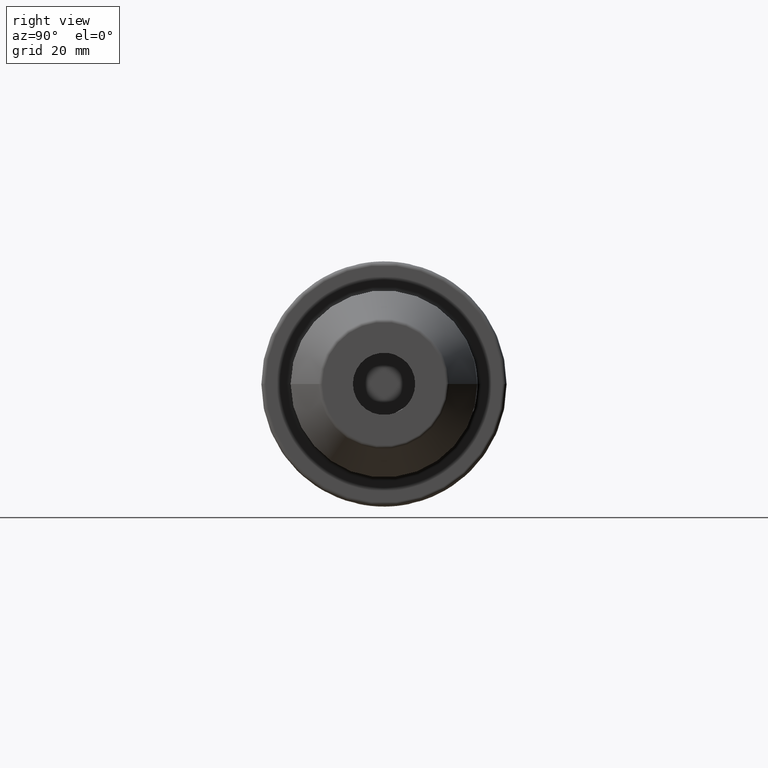
[diagram: clean part render]
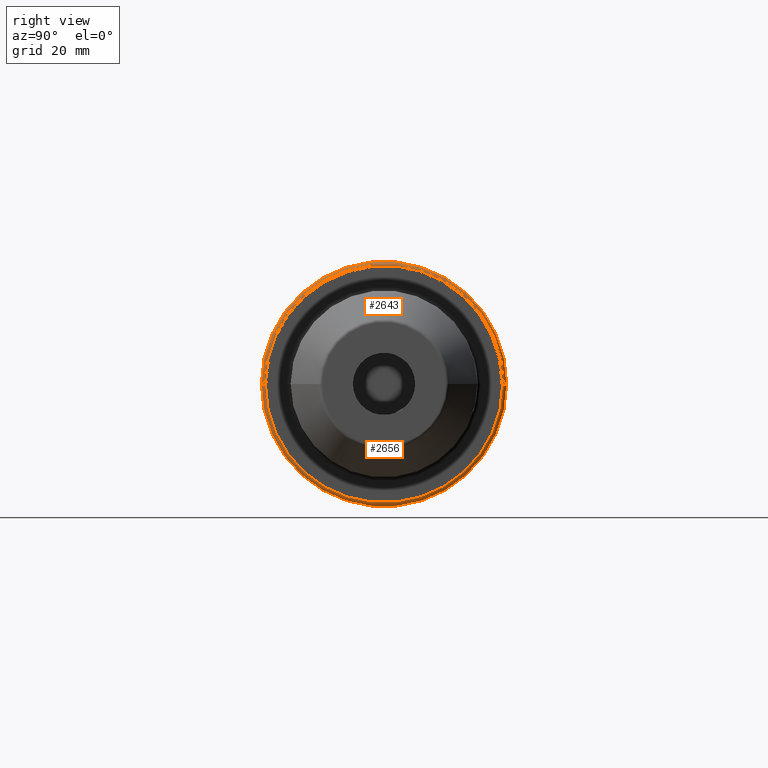
[diagram: same view with one multi-face feature highlighted, each face labeled with its STEP entity id]
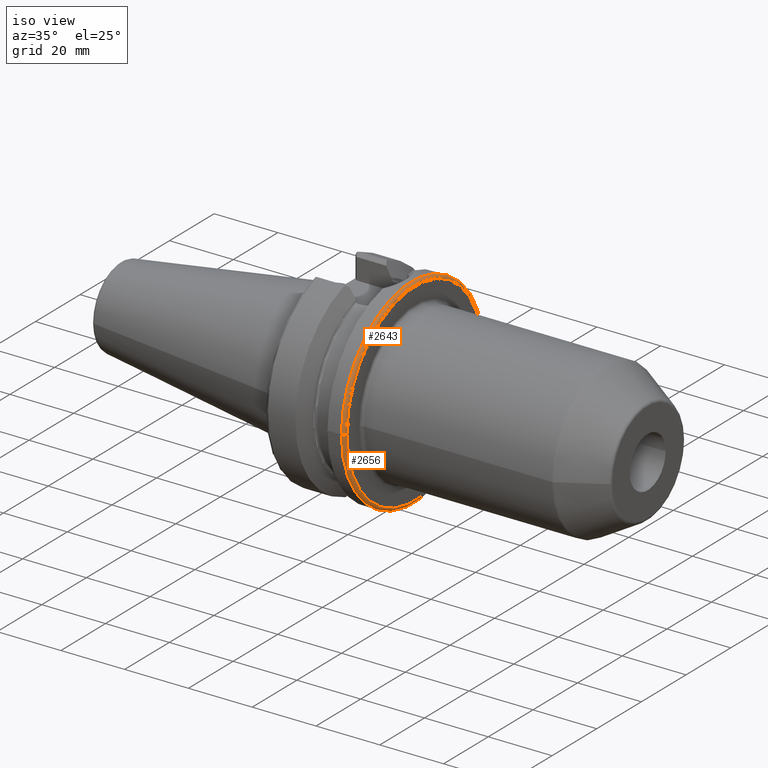
[diagram: same view with one multi-face feature highlighted, each face labeled with its STEP entity id]
A machine part, right view. The highlighted faces form ONE feature: a constant-radius fillet chain: 2 tangent blend faces with common blend radius 1 mm. The faces share edges in the B-rep.
A second angle (iso view) of the same feature is appended — it is thin or edge-on in the first view.
Their STEP definitions:
[1] entity #2656 (Torus):
#255=CARTESIAN_POINT('',(2.6E1,0.E0,0.E0));
#256=DIRECTION('',(-1.E0,0.E0,0.E0));
#257=DIRECTION('',(0.E0,1.E0,0.E0));
#258=AXIS2_PLACEMENT_3D('',#255,#256,#257);
#821=CARTESIAN_POINT('',(2.6E1,3.04875E1,0.E0));
#822=DIRECTION('',(0.E0,0.E0,1.E0));
#823=DIRECTION('',(1.E0,0.E0,0.E0));
#824=AXIS2_PLACEMENT_3D('',#821,#822,#823);
#826=CARTESIAN_POINT('',(2.6E1,-3.04875E1,0.E0));
#827=DIRECTION('',(0.E0,0.E0,-1.E0));
#828=DIRECTION('',(1.E0,0.E0,0.E0));
#829=AXIS2_PLACEMENT_3D('',#826,#827,#828);
#831=CARTESIAN_POINT('',(2.7E1,0.E0,0.E0));
#832=DIRECTION('',(-1.E0,0.E0,0.E0));
#833=DIRECTION('',(0.E0,1.E0,0.E0));
#834=AXIS2_PLACEMENT_3D('',#831,#832,#833);
#1378=CARTESIAN_POINT('',(2.6E1,3.14875E1,0.E0));
#1379=VERTEX_POINT('',#1378);
#1380=CARTESIAN_POINT('',(2.6E1,-3.14875E1,0.E0));
#1381=VERTEX_POINT('',#1380);
#1448=CARTESIAN_POINT('',(2.7E1,3.04875E1,0.E0));
#1449=VERTEX_POINT('',#1448);
#1450=CARTESIAN_POINT('',(2.7E1,-3.04875E1,0.E0));
#1451=VERTEX_POINT('',#1450);
#2644=CARTESIAN_POINT('',(2.6E1,0.E0,0.E0));
#2645=DIRECTION('',(1.E0,0.E0,0.E0));
#2646=DIRECTION('',(0.E0,-1.E0,0.E0));
#2647=AXIS2_PLACEMENT_3D('',#2644,#2645,#2646);
#2648=TOROIDAL_SURFACE('',#2647,3.04875E1,1.E0);
#2649=ORIENTED_EDGE('',*,*,#2634,.T.);
#2650=ORIENTED_EDGE('',*,*,#1911,.T.);
#2651=ORIENTED_EDGE('',*,*,#2638,.F.);
#2653=ORIENTED_EDGE('',*,*,#2652,.F.);
#2654=EDGE_LOOP('',(#2649,#2650,#2651,#2653));
#2655=FACE_OUTER_BOUND('',#2654,.F.);
#2656=ADVANCED_FACE('',(#2655),#2648,.T.);
#259=CIRCLE('',#258,3.14875E1);
#825=CIRCLE('',#824,1.E0);
#830=CIRCLE('',#829,1.E0);
#835=CIRCLE('',#834,3.04875E1);
#1911=EDGE_CURVE('',#1379,#1381,#259,.T.);
#2634=EDGE_CURVE('',#1449,#1379,#825,.T.);
#2638=EDGE_CURVE('',#1451,#1381,#830,.T.);
#2652=EDGE_CURVE('',#1449,#1451,#835,.T.);
[2] entity #2643 (Torus):
#792=CARTESIAN_POINT('',(2.6E1,0.E0,0.E0));
#793=DIRECTION('',(1.E0,0.E0,0.E0));
#794=DIRECTION('',(0.E0,1.E0,0.E0));
#795=AXIS2_PLACEMENT_3D('',#792,#793,#794);
#816=CARTESIAN_POINT('',(2.7E1,0.E0,0.E0));
#817=DIRECTION('',(1.E0,0.E0,0.E0));
#818=DIRECTION('',(0.E0,1.E0,0.E0));
#819=AXIS2_PLACEMENT_3D('',#816,#817,#818);
#821=CARTESIAN_POINT('',(2.6E1,3.04875E1,0.E0));
#822=DIRECTION('',(0.E0,0.E0,1.E0));
#823=DIRECTION('',(1.E0,0.E0,0.E0));
#824=AXIS2_PLACEMENT_3D('',#821,#822,#823);
#826=CARTESIAN_POINT('',(2.6E1,-3.04875E1,0.E0));
#827=DIRECTION('',(0.E0,0.E0,-1.E0));
#828=DIRECTION('',(1.E0,0.E0,0.E0));
#829=AXIS2_PLACEMENT_3D('',#826,#827,#828);
#1378=CARTESIAN_POINT('',(2.6E1,3.14875E1,0.E0));
#1379=VERTEX_POINT('',#1378);
#1380=CARTESIAN_POINT('',(2.6E1,-3.14875E1,0.E0));
#1381=VERTEX_POINT('',#1380);
#1448=CARTESIAN_POINT('',(2.7E1,3.04875E1,0.E0));
#1449=VERTEX_POINT('',#1448);
#1450=CARTESIAN_POINT('',(2.7E1,-3.04875E1,0.E0));
#1451=VERTEX_POINT('',#1450);
#2629=CARTESIAN_POINT('',(2.6E1,0.E0,0.E0));
#2630=DIRECTION('',(1.E0,0.E0,0.E0));
#2631=DIRECTION('',(0.E0,-1.E0,0.E0));
#2632=AXIS2_PLACEMENT_3D('',#2629,#2630,#2631);
#2633=TOROIDAL_SURFACE('',#2632,3.04875E1,1.E0);
#2635=ORIENTED_EDGE('',*,*,#2634,.F.);
#2637=ORIENTED_EDGE('',*,*,#2636,.T.);
#2639=ORIENTED_EDGE('',*,*,#2638,.T.);
#2640=ORIENTED_EDGE('',*,*,#2620,.F.);
#2641=EDGE_LOOP('',(#2635,#2637,#2639,#2640));
#2642=FACE_OUTER_BOUND('',#2641,.F.);
#2643=ADVANCED_FACE('',(#2642),#2633,.T.);
#796=CIRCLE('',#795,3.14875E1);
#820=CIRCLE('',#819,3.04875E1);
#825=CIRCLE('',#824,1.E0);
#830=CIRCLE('',#829,1.E0);
#2620=EDGE_CURVE('',#1379,#1381,#796,.T.);
#2634=EDGE_CURVE('',#1449,#1379,#825,.T.);
#2636=EDGE_CURVE('',#1449,#1451,#820,.T.);
#2638=EDGE_CURVE('',#1451,#1381,#830,.T.);